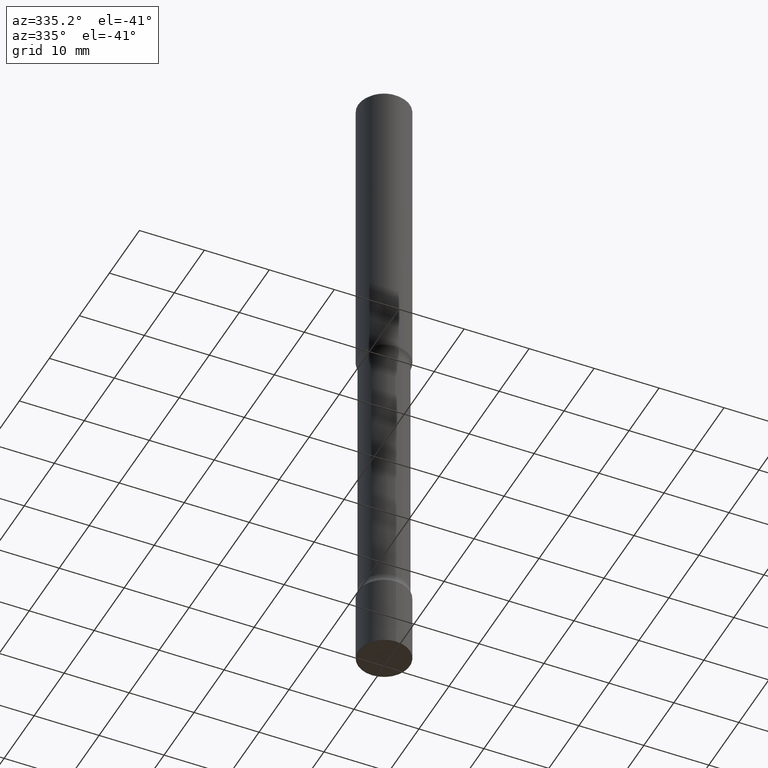
[diagram: clean part render]
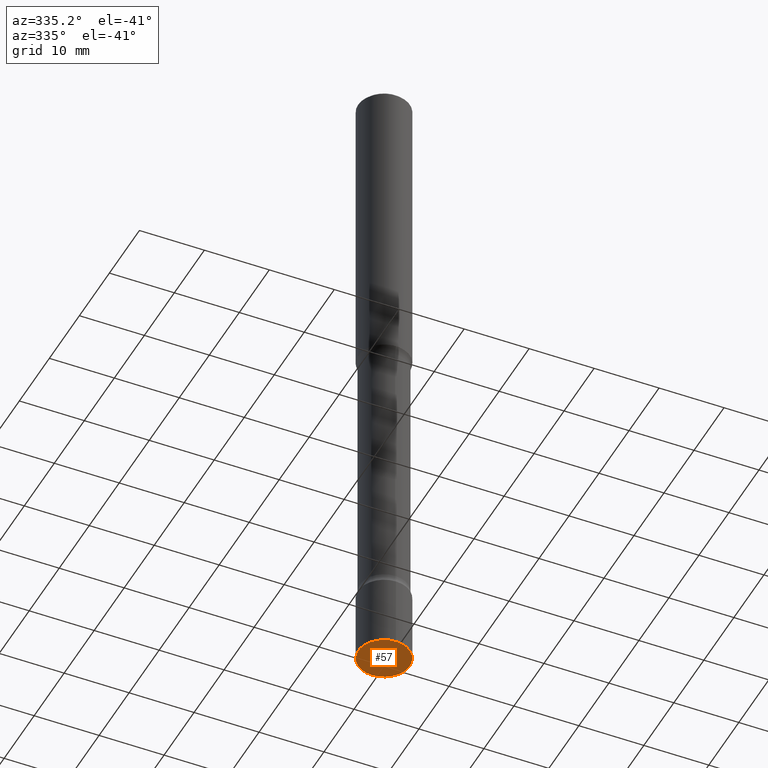
[diagram: same view with one face highlighted and labeled with its STEP entity id]
A machine part, auxiliary view. The second image highlights one B-rep face of the part: STEP entity #57.
In plain terms, the highlighted planar face has unit normal (0, -0, -1).
Its self-contained STEP definition (entity closure, byte-faithful):
#41 = CARTESIAN_POINT ( 'NONE',  ( 9.781875224740546387E-29, -1.396592535537258233E-14, -4.000000000000000000 ) ) ;
#45 = AXIS2_PLACEMENT_3D ( 'NONE', #41, #432, #337 ) ;
#57 = ADVANCED_FACE ( 'NONE', ( #380 ), #279, .T. ) ;
#68 = VERTEX_POINT ( 'NONE', #394 ) ;
#78 = DIRECTION ( 'NONE',  ( -6.982962677686265922E-15, -1.000000000000000000, 3.496765431890251792E-15 ) ) ;
#93 = CARTESIAN_POINT ( 'NONE',  ( 9.785161073132126286E-29, -1.396121983345696295E-14, -4.000000000000000000 ) ) ;
#102 = DIRECTION ( 'NONE',  ( -6.982962677686265922E-15, -1.000000000000000000, 3.496765431890251792E-15 ) ) ;
#105 = VERTEX_POINT ( 'NONE', #256 ) ;
#121 = CIRCLE ( 'NONE', #457, 0.1562500000000002220 ) ;
#130 = ORIENTED_EDGE ( 'NONE', *, *, #160, .F. ) ;
#160 = EDGE_CURVE ( 'NONE', #105, #68, #121, .T. ) ;
#195 = ORIENTED_EDGE ( 'NONE', *, *, #329, .F. ) ;
#221 = CARTESIAN_POINT ( 'NONE',  ( 9.785161073132126286E-29, -1.396121983345696295E-14, -4.000000000000000000 ) ) ;
#254 = DIRECTION ( 'NONE',  ( -2.446290268283031571E-29, 3.490304958364241131E-15, 1.000000000000000000 ) ) ;
#256 = CARTESIAN_POINT ( 'NONE',  ( -1.091087918388382538E-15, -0.1562500000000141831, -3.999999999999999556 ) ) ;
#279 = PLANE ( 'NONE',  #45 ) ;
#307 = DIRECTION ( 'NONE',  ( -2.446290268283031571E-29, 3.490304958364241131E-15, 1.000000000000000000 ) ) ;
#328 = CIRCLE ( 'NONE', #461, 0.1562500000000002220 ) ;
#329 = EDGE_CURVE ( 'NONE', #68, #105, #328, .T. ) ;
#337 = DIRECTION ( 'NONE',  ( 6.982962677686265922E-15, 1.000000000000000000, -3.490304958364241131E-15 ) ) ;
#380 = FACE_OUTER_BOUND ( 'NONE', #491, .T. ) ;
#394 = CARTESIAN_POINT ( 'NONE',  ( 1.110223024625250218E-15, 0.1562499999999862332, -4.000000000000000888 ) ) ;
#432 = DIRECTION ( 'NONE',  ( 2.446290268283031011E-29, -3.490304958364241131E-15, -1.000000000000000000 ) ) ;
#457 = AXIS2_PLACEMENT_3D ( 'NONE', #221, #307, #78 ) ;
#461 = AXIS2_PLACEMENT_3D ( 'NONE', #93, #254, #102 ) ;
#491 = EDGE_LOOP ( 'NONE', ( #130, #195 ) ) ;